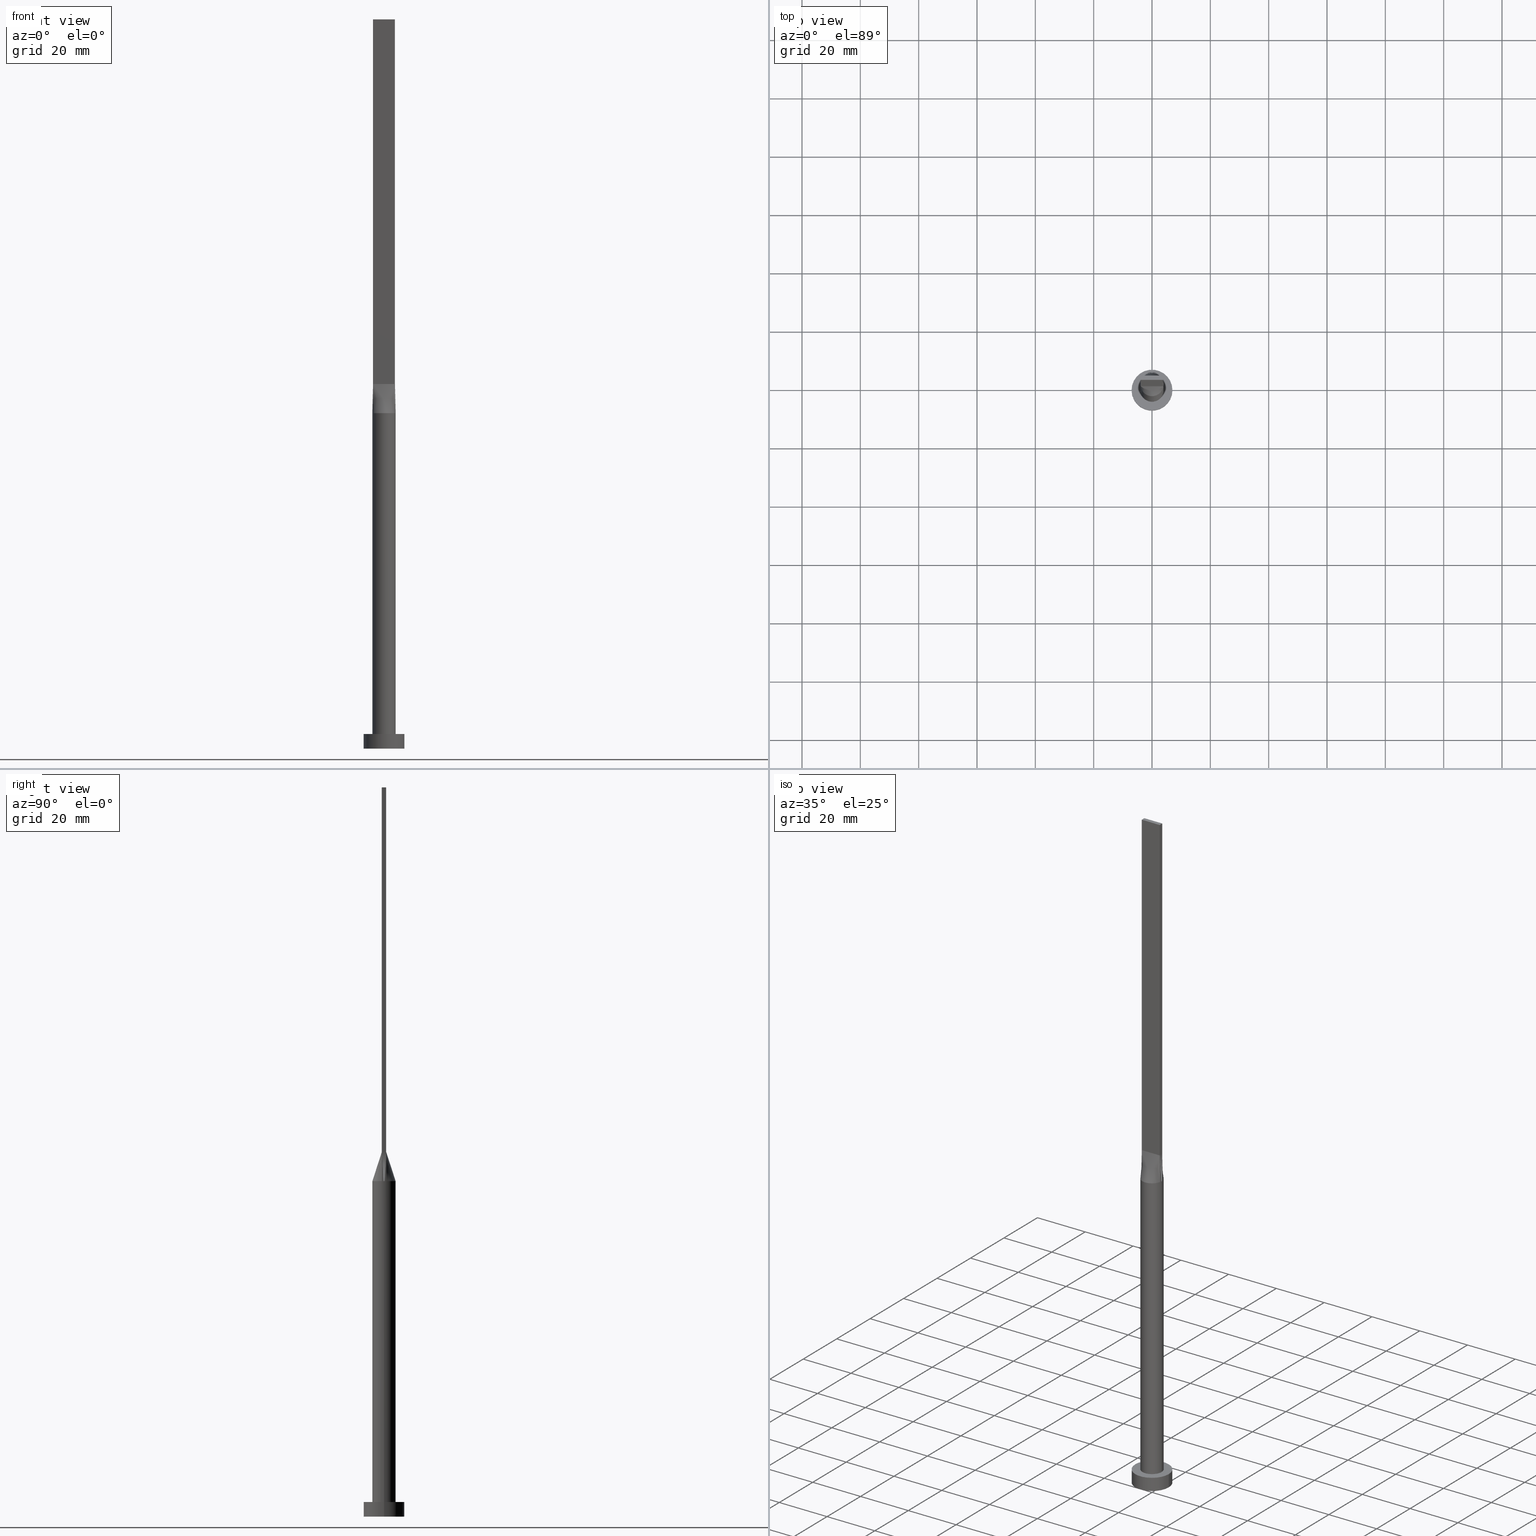
[diagram: canonical four-view strip — front | top / right | iso, engineering-drawing reading convention]
A machine part, canonical four-view strip (front | top / right | iso — engineering-drawing reading convention). The complete STEP part file that produces these views, byte-faithful:
ISO-10303-21;
HEADER;
FILE_DESCRIPTION (( 'STEP AP203' ),
    '1' );
FILE_NAME ('21d0.STEP',
    '2023-02-13T10:44:52',
    ( '' ),
    ( '' ),
    'SwSTEP 2.0',
    'SolidWorks 2019',
    '' );
FILE_SCHEMA (( 'CONFIG_CONTROL_DESIGN' ));
ENDSEC;

DATA;
#1 =( GEOMETRIC_REPRESENTATION_CONTEXT ( 3 ) GLOBAL_UNCERTAINTY_ASSIGNED_CONTEXT ( ( #564 ) ) GLOBAL_UNIT_ASSIGNED_CONTEXT ( ( #218, #135, #312 ) ) REPRESENTATION_CONTEXT ( 'NONE', 'WORKASPACE' ) );
#2 = DIRECTION ( 'NONE',  ( 0.000000000000000000, 0.000000000000000000, 1.000000000000000000 ) ) ;
#3 = DIRECTION ( 'NONE',  ( 0.01722960997854780865, -0.003445921995709364145, 0.9998456211643809155 ) ) ;
#4 = ORIENTED_EDGE ( 'NONE', *, *, #35, .T. ) ;
#5 = EDGE_CURVE ( 'NONE', #505, #11, #339, .T. ) ;
#6 = EDGE_CURVE ( 'NONE', #17, #185, #428, .T. ) ;
#7 = DIRECTION ( 'NONE',  ( 0.000000000000000000, 0.000000000000000000, 1.000000000000000000 ) ) ;
#8 = ORIENTED_EDGE ( 'NONE', *, *, #507, .T. ) ;
#9 = DESIGN_CONTEXT ( 'detailed design', #391, 'design' ) ;
#10 = CARTESIAN_POINT ( 'NONE',  ( -3.922691944042750123, 0.7845383302616953936, 115.0000000000000000 ) ) ;
#11 = VERTEX_POINT ( 'NONE', #484 ) ;
#12 = AXIS2_PLACEMENT_3D ( 'NONE', #155, #62, #340 ) ;
#13 = FACE_OUTER_BOUND ( 'NONE', #206, .T. ) ;
#14 = CARTESIAN_POINT ( 'NONE',  ( -3.124999999999999112, -0.7499999999999993339, 125.0000000000000000 ) ) ;
#15 = VERTEX_POINT ( 'NONE', #165 ) ;
#16 = EDGE_CURVE ( 'NONE', #249, #416, #530, .T. ) ;
#17 = VERTEX_POINT ( 'NONE', #349 ) ;
#18 = CARTESIAN_POINT ( 'NONE',  ( -2.474203369347176107, -3.177619198138197820, 115.0000000000000000 ) ) ;
#19 = DIRECTION ( 'NONE',  ( 1.000000000000000000, 0.000000000000000000, 0.000000000000000000 ) ) ;
#20 = CARTESIAN_POINT ( 'NONE',  ( -0.6250000000000006661, 0.7500000000000002220, 125.0000000000000000 ) ) ;
#21 = CARTESIAN_POINT ( 'NONE',  ( 1.250000000000001554, -0.7499999999999995559, 125.0000000000000000 ) ) ;
#22 = APPROVAL_PERSON_ORGANIZATION ( #170, #89, #205 ) ;
#23 = DATE_AND_TIME ( #429, #115 ) ;
#24 = PRODUCT_DEFINITION ( 'NEZN�M�', '', #392, #9 ) ;
#25 = AXIS2_PLACEMENT_3D ( 'NONE', #118, #298, #19 ) ;
#26 = DIRECTION ( 'NONE',  ( 1.000000000000000000, 0.000000000000000000, -0.000000000000000000 ) ) ;
#27 = ORIENTED_EDGE ( 'NONE', *, *, #5, .T. ) ;
#28 = DIRECTION ( 'NONE',  ( -0.01722960997854780865, -0.003445921995709396671, 0.9998456211643809155 ) ) ;
#29 = CARTESIAN_POINT ( 'NONE',  ( 3.748423346357935948, 1.451418640363468349, 115.0000000000000142 ) ) ;
#30 = FACE_BOUND ( 'NONE', #152, .T. ) ;
#31 = APPROVAL_ROLE ( '' ) ;
#32 = CARTESIAN_POINT ( 'NONE',  ( 0.000000000000000000, 0.000000000000000000, 115.0000000000000000 ) ) ;
#33 = ORIENTED_EDGE ( 'NONE', *, *, #16, .T. ) ;
#34 = CIRCLE ( 'NONE', #310, 4.000000000000000000 ) ;
#35 = EDGE_CURVE ( 'NONE', #117, #505, #256, .T. ) ;
#36 = ORIENTED_EDGE ( 'NONE', *, *, #138, .F. ) ;
#37 = DIRECTION ( 'NONE',  ( 0.000000000000000000, 1.000000000000000000, 0.000000000000000000 ) ) ;
#38 = DIRECTION ( 'NONE',  ( 0.000000000000000000, 0.000000000000000000, 1.000000000000000000 ) ) ;
#39 = ORIENTED_EDGE ( 'NONE', *, *, #238, .T. ) ;
#40 = LINE ( 'NONE', #408, #245 ) ;
#41 = CARTESIAN_POINT ( 'NONE',  ( -2.474203369347175219, 3.177619198138199152, 114.9999999999999858 ) ) ;
#42 = CARTESIAN_POINT ( 'NONE',  ( -3.750000000000000000, 0.7500000000000002220, 250.0000000000000000 ) ) ;
#43 = DIRECTION ( 'NONE',  ( -1.000000000000000000, -0.000000000000000000, -0.000000000000000000 ) ) ;
#44 = CC_DESIGN_PERSON_AND_ORGANIZATION_ASSIGNMENT ( #159, #526, ( #431 ) ) ;
#45 = VERTEX_POINT ( 'NONE', #129 ) ;
#46 = DIRECTION ( 'NONE',  ( -1.000000000000000000, 0.000000000000000000, 0.000000000000000000 ) ) ;
#47 = VECTOR ( 'NONE', #412, 1000.000000000000000 ) ;
#48 = CARTESIAN_POINT ( 'NONE',  ( -3.973604754045732435, 0.5280542841424794576, 115.0000000000000000 ) ) ;
#49 = CARTESIAN_POINT ( 'NONE',  ( -3.750000000000000000, 0.7500000000000002220, 250.0000000000000000 ) ) ;
#50 = ORIENTED_EDGE ( 'NONE', *, *, #6, .T. ) ;
#51 = DIRECTION ( 'NONE',  ( -0.000000000000000000, 0.000000000000000000, -1.000000000000000000 ) ) ;
#52 = CARTESIAN_POINT ( 'NONE',  ( -3.140797583654741043, -2.520780954342105140, 114.9999999999999716 ) ) ;
#53 = EDGE_LOOP ( 'NONE', ( #357, #480 ) ) ;
#54 = PRODUCT_DEFINITION_SHAPE ( 'NONE', 'NONE',  #24 ) ;
#55 = CARTESIAN_POINT ( 'NONE',  ( 0.5465359351457045323, 4.000000000000000888, 115.0000000000000426 ) ) ;
#56 = DIRECTION ( 'NONE',  ( -0.000000000000000000, -0.000000000000000000, -1.000000000000000000 ) ) ;
#57 = ORIENTED_EDGE ( 'NONE', *, *, #508, .F. ) ;
#58 = AXIS2_PLACEMENT_3D ( 'NONE', #32, #344, #299 ) ;
#59 = AXIS2_PLACEMENT_3D ( 'NONE', #486, #559, #38 ) ;
#60 = CARTESIAN_POINT ( 'NONE',  ( -3.437499999999999556, -0.7499999999999993339, 125.0000000000000000 ) ) ;
#61 = CARTESIAN_POINT ( 'NONE',  ( 1.091295599582912557, -3.883835547170275682, 115.0000000000000142 ) ) ;
#62 = DIRECTION ( 'NONE',  ( 0.000000000000000000, 0.000000000000000000, 1.000000000000000000 ) ) ;
#63 = CARTESIAN_POINT ( 'NONE',  ( -2.055729527861833272, -3.471178582471582175, 115.0000000000000142 ) ) ;
#64 = ORIENTED_EDGE ( 'NONE', *, *, #168, .F. ) ;
#65 = CARTESIAN_POINT ( 'NONE',  ( 3.749999999999999556, 0.2500000000000009437, 125.0000000000000000 ) ) ;
#66 = ADVANCED_FACE ( 'NONE', ( #210 ), #161, .T. ) ;
#67 = CARTESIAN_POINT ( 'NONE',  ( -7.000000000000000000, 0.000000000000000000, 5.000000000000000000 ) ) ;
#68 = CARTESIAN_POINT ( 'NONE',  ( 1.562500000000001110, -0.7499999999999995559, 125.0000000000000000 ) ) ;
#69 = CIRCLE ( 'NONE', #190, 4.000000000000000000 ) ;
#70 = CARTESIAN_POINT ( 'NONE',  ( 3.750000000000000000, 0.7500000000000002220, 250.0000000000000000 ) ) ;
#71 = CARTESIAN_POINT ( 'NONE',  ( 2.474203369347174331, 3.177619198138197820, 114.9999999999999716 ) ) ;
#72 = CYLINDRICAL_SURFACE ( 'NONE', #224, 7.000000000000000000 ) ;
#73 = ORIENTED_EDGE ( 'NONE', *, *, #399, .T. ) ;
#74 = CARTESIAN_POINT ( 'NONE',  ( 0.000000000000000000, 0.000000000000000000, 0.000000000000000000 ) ) ;
#75 = FACE_OUTER_BOUND ( 'NONE', #482, .T. ) ;
#76 = CARTESIAN_POINT ( 'NONE',  ( 0.000000000000000000, 0.000000000000000000, 0.000000000000000000 ) ) ;
#77 = LOCAL_TIME ( 11, 44, 52.00000000000000000, #485 ) ;
#78 = APPROVAL_PERSON_ORGANIZATION ( #475, #441, #31 ) ;
#79 = VECTOR ( 'NONE', #221, 1000.000000000000000 ) ;
#80 = ORIENTED_EDGE ( 'NONE', *, *, #472, .T. ) ;
#81 = EDGE_CURVE ( 'NONE', #15, #45, #525, .T. ) ;
#82 = SHAPE_DEFINITION_REPRESENTATION ( #54, #554 ) ;
#83 = VERTEX_POINT ( 'NONE', #126 ) ;
#84 = DIRECTION ( 'NONE',  ( 0.000000000000000000, 0.000000000000000000, 1.000000000000000000 ) ) ;
#85 = CIRCLE ( 'NONE', #125, 7.000000000000000000 ) ;
#86 = CARTESIAN_POINT ( 'NONE',  ( -3.750000000000000000, -0.7499999999999993339, 250.0000000000000000 ) ) ;
#87 = EDGE_LOOP ( 'NONE', ( #106, #553, #33, #156, #323 ) ) ;
#88 = DIRECTION ( 'NONE',  ( 1.000000000000000000, 0.000000000000000000, 0.000000000000000000 ) ) ;
#89 = APPROVAL ( #576, 'NEUR�EN�' ) ;
#90 = DIRECTION ( 'NONE',  ( 1.000000000000000000, 0.000000000000000000, -0.000000000000000000 ) ) ;
#91 = CARTESIAN_POINT ( 'NONE',  ( 3.922678046951852959, 0.7845356715334603770, 115.0000000000000000 ) ) ;
#92 = EDGE_LOOP ( 'NONE', ( #377, #122, #488, #64, #302, #550 ) ) ;
#93 = CARTESIAN_POINT ( 'NONE',  ( -3.922691944042750123, 0.7845383302616953936, 115.0000000000000000 ) ) ;
#94 = APPLICATION_PROTOCOL_DEFINITION ( 'international standard', 'config_control_design', 1994, #391 ) ;
#95 = CARTESIAN_POINT ( 'NONE',  ( -3.748423346357938168, -1.451418640363467683, 115.0000000000000426 ) ) ;
#96 = VECTOR ( 'NONE', #37, 1000.000000000000000 ) ;
#97 = ORIENTED_EDGE ( 'NONE', *, *, #469, .F. ) ;
#98 = CARTESIAN_POINT ( 'NONE',  ( 3.390424152328985752, 2.159240079384420419, 115.0000000000000284 ) ) ;
#99 = VECTOR ( 'NONE', #43, 1000.000000000000000 ) ;
#100 = CARTESIAN_POINT ( 'NONE',  ( 1.091295599582912113, 3.883835547170277014, 115.0000000000000284 ) ) ;
#101 = CARTESIAN_POINT ( 'NONE',  ( -3.999622889843378992, -9.724176664205578004E-16, 115.0000000000000000 ) ) ;
#102 = CARTESIAN_POINT ( 'NONE',  ( -3.750000000000000000, -0.7499999999999993339, 125.0000000000000000 ) ) ;
#103 = DIRECTION ( 'NONE',  ( 1.000000000000000000, 0.000000000000000000, 0.000000000000000000 ) ) ;
#104 = ORIENTED_EDGE ( 'NONE', *, *, #445, .F. ) ;
#105 = CARTESIAN_POINT ( 'NONE',  ( 7.000000000000000000, 8.572527594031473190E-16, 5.000000000000000000 ) ) ;
#106 = ORIENTED_EDGE ( 'NONE', *, *, #355, .T. ) ;
#107 = CC_DESIGN_APPROVAL ( #89, ( #431 ) ) ;
#108 = AXIS2_PLACEMENT_3D ( 'NONE', #504, #316, #103 ) ;
#109 = CARTESIAN_POINT ( 'NONE',  ( -0.5465359351457051984, -4.000000000000000888, 115.0000000000000000 ) ) ;
#110 = CARTESIAN_POINT ( 'NONE',  ( -1.250000000000000222, 0.7500000000000002220, 125.0000000000000000 ) ) ;
#111 = CARTESIAN_POINT ( 'NONE',  ( 3.125000000000000000, -0.7499999999999997780, 125.0000000000000000 ) ) ;
#112 = ADVANCED_FACE ( 'NONE', ( #75 ), #430, .T. ) ;
#113 = CARTESIAN_POINT ( 'NONE',  ( 3.437500000000000000, 0.7500000000000003331, 125.0000000000000000 ) ) ;
#114 = DIRECTION ( 'NONE',  ( 1.000000000000000000, 0.000000000000000000, 0.000000000000000000 ) ) ;
#115 = LOCAL_TIME ( 11, 44, 52.00000000000000000, #393 ) ;
#116 = CIRCLE ( 'NONE', #12, 4.000000000000000000 ) ;
#117 = VERTEX_POINT ( 'NONE', #569 ) ;
#118 = CARTESIAN_POINT ( 'NONE',  ( 0.000000000000000000, 0.000000000000000000, 5.000000000000000000 ) ) ;
#119 = CARTESIAN_POINT ( 'NONE',  ( 0.000000000000000000, 0.000000000000000000, 5.000000000000000000 ) ) ;
#120 = EDGE_CURVE ( 'NONE', #11, #174, #314, .T. ) ;
#121 = DIRECTION ( 'NONE',  ( 5.782411586589357392E-17, 1.000000000000000000, -0.000000000000000000 ) ) ;
#122 = ORIENTED_EDGE ( 'NONE', *, *, #355, .F. ) ;
#123 = DATE_AND_TIME ( #556, #198 ) ;
#124 = SECURITY_CLASSIFICATION_LEVEL ( 'unclassified' ) ;
#125 = AXIS2_PLACEMENT_3D ( 'NONE', #74, #130, #217 ) ;
#126 = CARTESIAN_POINT ( 'NONE',  ( 3.750000000000000000, -0.7499999999999997780, 125.0000000000000000 ) ) ;
#127 = PERSON_AND_ORGANIZATION ( #467, #329 ) ;
#128 = CC_DESIGN_PERSON_AND_ORGANIZATION_ASSIGNMENT ( #487, #211, ( #392 ) ) ;
#129 = CARTESIAN_POINT ( 'NONE',  ( -4.000000000000000000, 0.000000000000000000, 5.000000000000000000 ) ) ;
#130 = DIRECTION ( 'NONE',  ( 0.000000000000000000, 0.000000000000000000, 1.000000000000000000 ) ) ;
#131 = CARTESIAN_POINT ( 'NONE',  ( -3.750000000000000000, 0.7500000000000002220, 125.0000000000000000 ) ) ;
#132 = ORIENTED_EDGE ( 'NONE', *, *, #469, .T. ) ;
#133 = CIRCLE ( 'NONE', #490, 7.000000000000000000 ) ;
#134 = EDGE_CURVE ( 'NONE', #136, #83, #272, .T. ) ;
#135 =( NAMED_UNIT ( * ) PLANE_ANGLE_UNIT ( ) SI_UNIT ( $, .RADIAN. ) );
#136 = VERTEX_POINT ( 'NONE', #141 ) ;
#137 = DIRECTION ( 'NONE',  ( -0.01722960997854780865, 0.003445921995709364145, 0.9998456211643809155 ) ) ;
#138 = EDGE_CURVE ( 'NONE', #505, #416, #228, .T. ) ;
#139 = CARTESIAN_POINT ( 'NONE',  ( 0.5465359351457045323, 4.000000000000000888, 115.0000000000000426 ) ) ;
#140 = LINE ( 'NONE', #237, #79 ) ;
#141 = CARTESIAN_POINT ( 'NONE',  ( -3.750000000000000000, -0.7499999999999993339, 125.0000000000000000 ) ) ;
#142 = DIRECTION ( 'NONE',  ( 1.000000000000000000, 0.000000000000000000, 0.000000000000000000 ) ) ;
#143 = CARTESIAN_POINT ( 'NONE',  ( -3.750000000000000000, 0.7500000000000002220, 125.0000000000000000 ) ) ;
#144 = DIRECTION ( 'NONE',  ( 0.000000000000000000, -1.000000000000000000, 0.000000000000000000 ) ) ;
#145 = EDGE_CURVE ( 'NONE', #264, #83, #40, .T. ) ;
#146 = CARTESIAN_POINT ( 'NONE',  ( 4.000000000000000000, 4.898587196589412829E-16, 115.0000000000000000 ) ) ;
#147 = CARTESIAN_POINT ( 'NONE',  ( 3.125000000000000444, 0.7500000000000003331, 125.0000000000000000 ) ) ;
#148 = CARTESIAN_POINT ( 'NONE',  ( -1.562499999999998446, -0.7499999999999993339, 125.0000000000000000 ) ) ;
#149 = ORIENTED_EDGE ( 'NONE', *, *, #562, .T. ) ;
#150 = ADVANCED_FACE ( 'NONE', ( #361 ), #265, .T. ) ;
#151 = APPROVAL_PERSON_ORGANIZATION ( #371, #570, #173 ) ;
#152 = EDGE_LOOP ( 'NONE', ( #563, #222 ) ) ;
#153 = FACE_OUTER_BOUND ( 'NONE', #400, .T. ) ;
#154 = CARTESIAN_POINT ( 'NONE',  ( 2.055729527861832828, -3.471178582471583063, 115.0000000000000284 ) ) ;
#155 = CARTESIAN_POINT ( 'NONE',  ( 0.000000000000000000, 0.000000000000000000, 115.0000000000000000 ) ) ;
#156 = ORIENTED_EDGE ( 'NONE', *, *, #418, .F. ) ;
#157 = CARTESIAN_POINT ( 'NONE',  ( 1.562500000000000000, 0.7500000000000002220, 125.0000000000000000 ) ) ;
#158 = FACE_OUTER_BOUND ( 'NONE', #442, .T. ) ;
#159 = PERSON_AND_ORGANIZATION ( #467, #329 ) ;
#160 = ORIENTED_EDGE ( 'NONE', *, *, #120, .F. ) ;
#161 = CYLINDRICAL_SURFACE ( 'NONE', #58, 4.000000000000000000 ) ;
#162 = CARTESIAN_POINT ( 'NONE',  ( -3.140797583654740599, 2.520780954342106916, 114.9999999999999716 ) ) ;
#163 = CARTESIAN_POINT ( 'NONE',  ( 0.000000000000000000, 0.000000000000000000, 250.0000000000000000 ) ) ;
#164 = DIRECTION ( 'NONE',  ( 1.000000000000000000, -5.782411586589357392E-17, 0.000000000000000000 ) ) ;
#165 = CARTESIAN_POINT ( 'NONE',  ( 4.000000000000000000, 4.898587196589412829E-16, 5.000000000000000000 ) ) ;
#166 = VECTOR ( 'NONE', #443, 1000.000000000000000 ) ;
#167 = EDGE_CURVE ( 'NONE', #185, #17, #133, .T. ) ;
#168 = EDGE_CURVE ( 'NONE', #529, #194, #116, .T. ) ;
#169 = AXIS2_PLACEMENT_3D ( 'NONE', #76, #432, #26 ) ;
#170 = PERSON_AND_ORGANIZATION ( #467, #329 ) ;
#171 = APPLICATION_CONTEXT ( 'configuration controlled 3d designs of mechanical parts and assemblies' ) ;
#172 = FACE_OUTER_BOUND ( 'NONE', #453, .T. ) ;
#173 = APPROVAL_ROLE ( '' ) ;
#174 = VERTEX_POINT ( 'NONE', #336 ) ;
#175 = ADVANCED_FACE ( 'NONE', ( #153 ), #289, .T. ) ;
#176 = CARTESIAN_POINT ( 'NONE',  ( 0.000000000000000000, 0.000000000000000000, 5.000000000000000000 ) ) ;
#177 = CARTESIAN_POINT ( 'NONE',  ( 0.000000000000000000, 0.000000000000000000, 5.000000000000000000 ) ) ;
#178 = CARTESIAN_POINT ( 'NONE',  ( 3.750000000000000000, 0.7500000000000002220, 250.0000000000000000 ) ) ;
#179 = AXIS2_PLACEMENT_3D ( 'NONE', #365, #540, #142 ) ;
#180 = CARTESIAN_POINT ( 'NONE',  ( -3.390424152328988416, 2.159240079384419975, 115.0000000000000284 ) ) ;
#181 = CARTESIAN_POINT ( 'NONE',  ( -3.750000000000000000, -0.7499999999999993339, 250.0000000000000000 ) ) ;
#182 = DIRECTION ( 'NONE',  ( -0.000000000000000000, -0.000000000000000000, -1.000000000000000000 ) ) ;
#183 = ORIENTED_EDGE ( 'NONE', *, *, #345, .F. ) ;
#184 = DIRECTION ( 'NONE',  ( -1.000000000000000000, 0.000000000000000000, 0.000000000000000000 ) ) ;
#185 = VERTEX_POINT ( 'NONE', #67 ) ;
#186 = EDGE_CURVE ( 'NONE', #194, #264, #413, .T. ) ;
#187 = PERSON_AND_ORGANIZATION ( #467, #329 ) ;
#188 = DIRECTION ( 'NONE',  ( -0.000000000000000000, -0.000000000000000000, -1.000000000000000000 ) ) ;
#189 = ORIENTED_EDGE ( 'NONE', *, *, #253, .T. ) ;
#190 = AXIS2_PLACEMENT_3D ( 'NONE', #549, #7, #322 ) ;
#191 = CARTESIAN_POINT ( 'NONE',  ( 3.750000000000000000, 0.7500000000000002220, 125.0000000000000000 ) ) ;
#192 = FACE_OUTER_BOUND ( 'NONE', #491, .T. ) ;
#193 = CARTESIAN_POINT ( 'NONE',  ( 3.750000000000000000, 0.7500000000000002220, 250.0000000000000000 ) ) ;
#194 = VERTEX_POINT ( 'NONE', #295 ) ;
#195 = CC_DESIGN_PERSON_AND_ORGANIZATION_ASSIGNMENT ( #354, #252, ( #392 ) ) ;
#196 = CARTESIAN_POINT ( 'NONE',  ( -3.748423346357937280, 1.451418640363469015, 115.0000000000000284 ) ) ;
#197 = CARTESIAN_POINT ( 'NONE',  ( 3.922322702763681335, -0.7844645405527340687, 115.0000000000000000 ) ) ;
#198 = LOCAL_TIME ( 11, 44, 52.00000000000000000, #424 ) ;
#199 = CARTESIAN_POINT ( 'NONE',  ( -3.836161351381840667, -0.7672322702763668678, 120.0000000000000000 ) ) ;
#200 = CARTESIAN_POINT ( 'NONE',  ( 0.000000000000000000, 0.000000000000000000, 115.0000000000000000 ) ) ;
#201 = CARTESIAN_POINT ( 'NONE',  ( 3.750000000000000000, 0.7500000000000002220, 250.0000000000000000 ) ) ;
#202 = ORIENTED_EDGE ( 'NONE', *, *, #16, .F. ) ;
#203 = DIRECTION ( 'NONE',  ( 0.000000000000000000, 0.000000000000000000, 1.000000000000000000 ) ) ;
#204 = LINE ( 'NONE', #544, #547 ) ;
#205 = APPROVAL_ROLE ( '' ) ;
#206 = EDGE_LOOP ( 'NONE', ( #347, #271, #520, #257 ) ) ;
#207 = ADVANCED_FACE ( 'NONE', ( #385 ), #72, .T. ) ;
#208 = DATE_TIME_ROLE ( 'classification_date' ) ;
#209 = EDGE_LOOP ( 'NONE', ( #370, #476, #132, #8 ) ) ;
#210 = FACE_OUTER_BOUND ( 'NONE', #92, .T. ) ;
#211 = PERSON_AND_ORGANIZATION_ROLE ( 'creator' ) ;
#212 = VECTOR ( 'NONE', #164, 1000.000000000000000 ) ;
#213 = DIRECTION ( 'NONE',  ( -1.000000000000000000, 0.000000000000000000, 0.000000000000000000 ) ) ;
#214 = ADVANCED_FACE ( 'NONE', ( #158 ), #390, .F. ) ;
#215 = CARTESIAN_POINT ( 'NONE',  ( -3.749999999999999556, -0.5000000000000001110, 125.0000000000000000 ) ) ;
#216 = ADVANCED_FACE ( 'NONE', ( #522 ), #250, .F. ) ;
#217 = DIRECTION ( 'NONE',  ( 1.000000000000000000, 0.000000000000000000, 0.000000000000000000 ) ) ;
#218 =( LENGTH_UNIT ( ) NAMED_UNIT ( * ) SI_UNIT ( .MILLI., .METRE. ) );
#219 = CARTESIAN_POINT ( 'NONE',  ( -3.748423346357937280, 1.451418640363469015, 115.0000000000000284 ) ) ;
#220 = CARTESIAN_POINT ( 'NONE',  ( -3.999245779686757984, -0.2640271420712390071, 115.0000000000000000 ) ) ;
#221 = DIRECTION ( 'NONE',  ( -0.000000000000000000, -0.000000000000000000, -1.000000000000000000 ) ) ;
#222 = ORIENTED_EDGE ( 'NONE', *, *, #81, .F. ) ;
#223 = DIRECTION ( 'NONE',  ( 0.000000000000000000, -1.000000000000000000, 0.000000000000000000 ) ) ;
#224 = AXIS2_PLACEMENT_3D ( 'NONE', #248, #425, #565 ) ;
#225 = CARTESIAN_POINT ( 'NONE',  ( -3.749999999999999556, 0.4999999999999995559, 125.0000000000000000 ) ) ;
#226 = DIRECTION ( 'NONE',  ( 0.000000000000000000, -0.000000000000000000, -1.000000000000000000 ) ) ;
#227 = ORIENTED_EDGE ( 'NONE', *, *, #562, .F. ) ;
#228 = LINE ( 'NONE', #178, #281 ) ;
#229 = EDGE_CURVE ( 'NONE', #117, #83, #204, .T. ) ;
#230 = APPLICATION_PROTOCOL_DEFINITION ( 'international standard', 'config_control_design', 1994, #171 ) ;
#231 = CARTESIAN_POINT ( 'NONE',  ( -3.836161351381840667, 0.7672322702763673119, 120.0000000000000000 ) ) ;
#232 = ORIENTED_EDGE ( 'NONE', *, *, #138, .T. ) ;
#233 = CARTESIAN_POINT ( 'NONE',  ( 0.3124999999999991673, 0.7500000000000003331, 125.0000000000000000 ) ) ;
#234 = CARTESIAN_POINT ( 'NONE',  ( 3.750000000000000000, 0.7500000000000002220, 125.0000000000000000 ) ) ;
#235 = CLOSED_SHELL ( 'NONE', ( #381, #207, #150, #519, #216, #66, #419, #466, #543, #175, #300, #524, #214, #457, #112 ) ) ;
#236 = AXIS2_PLACEMENT_3D ( 'NONE', #200, #517, #114 ) ;
#237 = CARTESIAN_POINT ( 'NONE',  ( -4.000000000000000000, 0.000000000000000000, 115.0000000000000000 ) ) ;
#238 = EDGE_CURVE ( 'NONE', #342, #15, #552, .T. ) ;
#239 = CARTESIAN_POINT ( 'NONE',  ( 2.187500000000000000, 0.7500000000000002220, 125.0000000000000000 ) ) ;
#240 = CARTESIAN_POINT ( 'NONE',  ( -2.187500000000000000, 0.7500000000000002220, 125.0000000000000000 ) ) ;
#241 = CARTESIAN_POINT ( 'NONE',  ( 3.858220138661117016, -1.104977361065556662, 115.0000000000000142 ) ) ;
#242 = CARTESIAN_POINT ( 'NONE',  ( 3.999245779686757984, -0.2640271420712401729, 115.0000000000000000 ) ) ;
#243 = CARTESIAN_POINT ( 'NONE',  ( 3.748423346357935948, 1.451418640363468349, 115.0000000000000142 ) ) ;
#244 = CARTESIAN_POINT ( 'NONE',  ( -3.922322702763681335, 0.7844645405527345128, 115.0000000000000000 ) ) ;
#245 = VECTOR ( 'NONE', #137, 1000.000000000000000 ) ;
#246 = CARTESIAN_POINT ( 'NONE',  ( 3.748423346357937280, -1.451418640363469015, 115.0000000000000284 ) ) ;
#247 = EDGE_CURVE ( 'NONE', #407, #397, #277, .T. ) ;
#248 = CARTESIAN_POINT ( 'NONE',  ( 0.000000000000000000, 0.000000000000000000, 5.000000000000000000 ) ) ;
#249 = VERTEX_POINT ( 'NONE', #91 ) ;
#250 = PLANE ( 'NONE',  #169 ) ;
#251 = VECTOR ( 'NONE', #3, 1000.000000000000000 ) ;
#252 = PERSON_AND_ORGANIZATION_ROLE ( 'design_supplier' ) ;
#253 = EDGE_CURVE ( 'NONE', #11, #397, #263, .T. ) ;
#254 = APPROVAL_DATE_TIME ( #305, #89 ) ;
#255 = ORIENTED_EDGE ( 'NONE', *, *, #315, .F. ) ;
#256 = LINE ( 'NONE', #440, #96 ) ;
#257 = ORIENTED_EDGE ( 'NONE', *, *, #502, .T. ) ;
#258 = APPROVAL_STATUS ( 'not_yet_approved' ) ;
#259 = ORIENTED_EDGE ( 'NONE', *, *, #120, .T. ) ;
#260 = DIRECTION ( 'NONE',  ( 1.000000000000000000, 0.000000000000000000, 0.000000000000000000 ) ) ;
#261 = CARTESIAN_POINT ( 'NONE',  ( -3.749999999999999556, -0.2500000000000005551, 125.0000000000000000 ) ) ;
#262 = ORIENTED_EDGE ( 'NONE', *, *, #247, .T. ) ;
#263 = LINE ( 'NONE', #49, #380 ) ;
#264 = VERTEX_POINT ( 'NONE', #451 ) ;
#265 = CYLINDRICAL_SURFACE ( 'NONE', #462, 7.000000000000000000 ) ;
#266 = FACE_OUTER_BOUND ( 'NONE', #87, .T. ) ;
#267 = CARTESIAN_POINT ( 'NONE',  ( 7.000000000000000000, 8.572527594031473190E-16, 0.000000000000000000 ) ) ;
#268 = CARTESIAN_POINT ( 'NONE',  ( -3.390424152328987528, -2.159240079384418642, 114.9999999999999858 ) ) ;
#269 = MANIFOLD_SOLID_BREP ( 'P�idat vysunut�m5', #235 ) ;
#270 = CC_DESIGN_DATE_AND_TIME_ASSIGNMENT ( #23, #208, ( #431 ) ) ;
#271 = ORIENTED_EDGE ( 'NONE', *, *, #145, .T. ) ;
#272 = LINE ( 'NONE', #368, #166 ) ;
#273 = AXIS2_PLACEMENT_3D ( 'NONE', #177, #2, #90 ) ;
#274 = CARTESIAN_POINT ( 'NONE',  ( -3.922322702763681335, -0.7844645405527344018, 115.0000000000000000 ) ) ;
#275 = CARTESIAN_POINT ( 'NONE',  ( -2.499999999999998668, -0.7499999999999993339, 125.0000000000000000 ) ) ;
#276 = CARTESIAN_POINT ( 'NONE',  ( 2.055729527861830608, 3.471178582471582619, 114.9999999999999858 ) ) ;
#277 = LINE ( 'NONE', #231, #251 ) ;
#278 = CARTESIAN_POINT ( 'NONE',  ( 1.091295599582912113, 3.883835547170277014, 115.0000000000000284 ) ) ;
#279 = EDGE_CURVE ( 'NONE', #529, #45, #140, .T. ) ;
#280 = CARTESIAN_POINT ( 'NONE',  ( -0.3125000000000009437, 0.7500000000000003331, 125.0000000000000000 ) ) ;
#281 = VECTOR ( 'NONE', #492, 1000.000000000000000 ) ;
#282 = DIRECTION ( 'NONE',  ( 0.000000000000000000, 0.000000000000000000, 1.000000000000000000 ) ) ;
#283 = CIRCLE ( 'NONE', #402, 7.000000000000000000 ) ;
#284 = CARTESIAN_POINT ( 'NONE',  ( -2.500000000000000444, 0.7500000000000002220, 125.0000000000000000 ) ) ;
#285 = CARTESIAN_POINT ( 'NONE',  ( 2.500000000000000444, -0.7499999999999996669, 125.0000000000000000 ) ) ;
#286 = CARTESIAN_POINT ( 'NONE',  ( 3.750000000000000000, -0.7499999999999997780, 125.0000000000000000 ) ) ;
#287 = ORIENTED_EDGE ( 'NONE', *, *, #35, .F. ) ;
#288 = CARTESIAN_POINT ( 'NONE',  ( 3.437500000000000000, -0.7499999999999997780, 125.0000000000000000 ) ) ;
#289 = B_SPLINE_SURFACE_WITH_KNOTS ( 'NONE', 3, 1, ( 
 ( #555, #415 ),
 ( #516, #113 ),
 ( #243, #147 ),
 ( #513, #290 ),
 ( #294, #239 ),
 ( #71, #157 ),
 ( #546, #318 ),
 ( #100, #458 ),
 ( #55, #233 ),
 ( #325, #280 ),
 ( #427, #20 ),
 ( #510, #110 ),
 ( #468, #423 ),
 ( #162, #240 ),
 ( #420, #284 ),
 ( #196, #473 ),
 ( #464, #561 ),
 ( #244, #514 ) ),
 .UNSPECIFIED., .F., .F., .F.,
 ( 4, 2, 2, 2, 2, 2, 2, 2, 4 ),
 ( 2, 2 ),
 ( 0.000000000000000000, 0.1249999999999999167, 0.2499999999999998890, 0.3749999999999998335, 0.4999999999999998890, 0.6249999999999998890, 0.7499999999999998890, 0.8750000000000000000, 1.000000000000000000 ),
 ( 0.000000000000000000, 1.000000000000000000 ),
 .UNSPECIFIED. ) ;
#290 = CARTESIAN_POINT ( 'NONE',  ( 2.500000000000000444, 0.7500000000000003331, 125.0000000000000000 ) ) ;
#291 = CARTESIAN_POINT ( 'NONE',  ( -0.3124999999999987788, -0.7499999999999993339, 125.0000000000000000 ) ) ;
#292 = ORIENTED_EDGE ( 'NONE', *, *, #229, .T. ) ;
#293 = CARTESIAN_POINT ( 'NONE',  ( 3.749999999999999556, 0.5000000000000006661, 125.0000000000000000 ) ) ;
#294 = CARTESIAN_POINT ( 'NONE',  ( 3.140797583654741931, 2.520780954342106028, 114.9999999999999858 ) ) ;
#295 = CARTESIAN_POINT ( 'NONE',  ( -3.922691619086878134, -0.7845384300002018474, 115.0000000000000000 ) ) ;
#296 = AXIS2_PLACEMENT_3D ( 'NONE', #193, #366, #226 ) ;
#297 = CARTESIAN_POINT ( 'NONE',  ( -1.249999999999998446, -0.7499999999999993339, 125.0000000000000000 ) ) ;
#298 = DIRECTION ( 'NONE',  ( 0.000000000000000000, 0.000000000000000000, 1.000000000000000000 ) ) ;
#299 = DIRECTION ( 'NONE',  ( -1.000000000000000000, 0.000000000000000000, 0.000000000000000000 ) ) ;
#300 = ADVANCED_FACE ( 'NONE', ( #500 ), #319, .F. ) ;
#301 = EDGE_CURVE ( 'NONE', #17, #538, #406, .T. ) ;
#302 = ORIENTED_EDGE ( 'NONE', *, *, #279, .T. ) ;
#303 = APPROVAL_DATE_TIME ( #123, #570 ) ;
#304 = AXIS2_PLACEMENT_3D ( 'NONE', #571, #121, #346 ) ;
#305 = DATE_AND_TIME ( #348, #545 ) ;
#306 = CALENDAR_DATE ( 2023, 13, 2 ) ;
#307 = PLANE ( 'NONE',  #59 ) ;
#308 = AXIS2_PLACEMENT_3D ( 'NONE', #489, #84, #260 ) ;
#309 = MECHANICAL_CONTEXT ( 'NONE', #171, 'mechanical' ) ;
#310 = AXIS2_PLACEMENT_3D ( 'NONE', #372, #282, #409 ) ;
#311 = CARTESIAN_POINT ( 'NONE',  ( -3.750000000000000000, 0.7500000000000002220, 250.0000000000000000 ) ) ;
#312 =( NAMED_UNIT ( * ) SI_UNIT ( $, .STERADIAN. ) SOLID_ANGLE_UNIT ( ) );
#313 = CARTESIAN_POINT ( 'NONE',  ( 0.000000000000000000, 0.000000000000000000, 115.0000000000000000 ) ) ;
#314 = LINE ( 'NONE', #311, #535 ) ;
#315 = EDGE_CURVE ( 'NONE', #342, #249, #34, .T. ) ;
#316 = DIRECTION ( 'NONE',  ( 0.000000000000000000, 0.000000000000000000, 1.000000000000000000 ) ) ;
#317 = ORIENTED_EDGE ( 'NONE', *, *, #81, .T. ) ;
#318 = CARTESIAN_POINT ( 'NONE',  ( 1.250000000000000000, 0.7500000000000002220, 125.0000000000000000 ) ) ;
#319 = PLANE ( 'NONE',  #296 ) ;
#320 = CARTESIAN_POINT ( 'NONE',  ( 3.140797583654741931, 2.520780954342106028, 114.9999999999999858 ) ) ;
#321 = CARTESIAN_POINT ( 'NONE',  ( -3.922322702763681335, 0.7844645405527354010, 115.0000000000000000 ) ) ;
#322 = DIRECTION ( 'NONE',  ( 1.000000000000000000, -1.421085471520200372E-14, 0.000000000000000000 ) ) ;
#323 = ORIENTED_EDGE ( 'NONE', *, *, #145, .F. ) ;
#324 = ORIENTED_EDGE ( 'NONE', *, *, #168, .T. ) ;
#325 = CARTESIAN_POINT ( 'NONE',  ( -0.5465359351457050874, 4.000000000000000000, 115.0000000000000000 ) ) ;
#326 = CYLINDRICAL_SURFACE ( 'NONE', #433, 4.000000000000000000 ) ;
#327 = B_SPLINE_SURFACE_WITH_KNOTS ( 'NONE', 3, 1, ( 
 ( #321, #131 ),
 ( #48, #225 ),
 ( #579, #503 ),
 ( #220, #261 ),
 ( #438, #215 ),
 ( #274, #405 ) ),
 .UNSPECIFIED., .F., .F., .F.,
 ( 4, 2, 4 ),
 ( 2, 2 ),
 ( 0.000000000000000000, 0.5000000000000000000, 1.000000000000000000 ),
 ( 0.000000000000000000, 1.000000000000000000 ),
 .UNSPECIFIED. ) ;
#328 = CARTESIAN_POINT ( 'NONE',  ( -0.6249999999999985567, -0.7499999999999993339, 125.0000000000000000 ) ) ;
#329 = ORGANIZATION ( 'NEUR�EN�', 'NEUR�EN�', '' ) ;
#330 = CIRCLE ( 'NONE', #25, 4.000000000000000000 ) ;
#331 = CARTESIAN_POINT ( 'NONE',  ( 0.3125000000000014433, -0.7499999999999994449, 125.0000000000000000 ) ) ;
#332 = ORIENTED_EDGE ( 'NONE', *, *, #508, .T. ) ;
#333 = B_SPLINE_CURVE_WITH_KNOTS ( 'NONE', 3,
 ( #533, #395, #29, #98, #320, #551, #276, #278, #139, #460, #364, #446, #41, #539, #180, #219, #496, #93 ),
 .UNSPECIFIED., .F., .F.,
 ( 4, 2, 2, 2, 2, 2, 2, 2, 4 ),
 ( 0.000000000000000000, 0.1249999999999999167, 0.2499999999999998890, 0.3749999999999998335, 0.4999999999999998890, 0.6249999999999998890, 0.7499999999999998890, 0.8750000000000000000, 1.000000000000000000 ),
 .UNSPECIFIED. ) ;
#334 = PRODUCT_RELATED_PRODUCT_CATEGORY ( 'detail', '', ( #463 ) ) ;
#335 = DIRECTION ( 'NONE',  ( 1.000000000000000000, 0.000000000000000000, 0.000000000000000000 ) ) ;
#336 = CARTESIAN_POINT ( 'NONE',  ( -3.750000000000000000, -0.7499999999999993339, 250.0000000000000000 ) ) ;
#337 = EDGE_LOOP ( 'NONE', ( #573, #374, #80, #97 ) ) ;
#338 = DIRECTION ( 'NONE',  ( -0.000000000000000000, -0.000000000000000000, -1.000000000000000000 ) ) ;
#339 = LINE ( 'NONE', #201, #378 ) ;
#340 = DIRECTION ( 'NONE',  ( 1.000000000000000000, 0.000000000000000000, 0.000000000000000000 ) ) ;
#341 = VECTOR ( 'NONE', #144, 1000.000000000000000 ) ;
#342 = VERTEX_POINT ( 'NONE', #541 ) ;
#343 = CARTESIAN_POINT ( 'NONE',  ( 0.000000000000000000, 0.000000000000000000, 0.000000000000000000 ) ) ;
#344 = DIRECTION ( 'NONE',  ( -0.000000000000000000, -0.000000000000000000, -1.000000000000000000 ) ) ;
#345 = EDGE_CURVE ( 'NONE', #397, #136, #461, .T. ) ;
#346 = DIRECTION ( 'NONE',  ( -1.000000000000000000, 5.782411586589357392E-17, 0.000000000000000000 ) ) ;
#347 = ORIENTED_EDGE ( 'NONE', *, *, #186, .T. ) ;
#348 = CALENDAR_DATE ( 2023, 13, 2 ) ;
#349 = CARTESIAN_POINT ( 'NONE',  ( 7.000000000000000000, 8.572527594031473190E-16, 5.000000000000000000 ) ) ;
#350 = CC_DESIGN_APPROVAL ( #441, ( #392 ) ) ;
#351 = CC_DESIGN_APPROVAL ( #570, ( #24 ) ) ;
#352 = DATE_TIME_ROLE ( 'creation_date' ) ;
#353 = CALENDAR_DATE ( 2023, 13, 2 ) ;
#354 = PERSON_AND_ORGANIZATION ( #467, #329 ) ;
#355 = EDGE_CURVE ( 'NONE', #264, #342, #69, .T. ) ;
#356 = DIRECTION ( 'NONE',  ( 1.000000000000000000, 0.000000000000000000, -0.000000000000000000 ) ) ;
#357 = ORIENTED_EDGE ( 'NONE', *, *, #507, .F. ) ;
#358 = DIRECTION ( 'NONE',  ( 0.000000000000000000, 0.000000000000000000, 1.000000000000000000 ) ) ;
#359 = VECTOR ( 'NONE', #396, 1000.000000000000000 ) ;
#360 = ORIENTED_EDGE ( 'NONE', *, *, #399, .F. ) ;
#361 = FACE_OUTER_BOUND ( 'NONE', #209, .T. ) ;
#362 = CARTESIAN_POINT ( 'NONE',  ( 3.749999999999999556, -0.2499999999999990286, 125.0000000000000000 ) ) ;
#363 = EDGE_CURVE ( 'NONE', #407, #529, #560, .T. ) ;
#364 = CARTESIAN_POINT ( 'NONE',  ( -1.091295599582913445, 3.883835547170275682, 115.0000000000000142 ) ) ;
#365 = CARTESIAN_POINT ( 'NONE',  ( 0.000000000000000000, 0.000000000000000000, 0.000000000000000000 ) ) ;
#366 = DIRECTION ( 'NONE',  ( 0.000000000000000000, -1.000000000000000000, 0.000000000000000000 ) ) ;
#367 = ORIENTED_EDGE ( 'NONE', *, *, #229, .F. ) ;
#368 = CARTESIAN_POINT ( 'NONE',  ( -3.750000000000000000, -0.7499999999999993339, 125.0000000000000000 ) ) ;
#369 = LINE ( 'NONE', #498, #99 ) ;
#370 = ORIENTED_EDGE ( 'NONE', *, *, #301, .F. ) ;
#371 = PERSON_AND_ORGANIZATION ( #467, #329 ) ;
#372 = CARTESIAN_POINT ( 'NONE',  ( 0.000000000000000000, 0.000000000000000000, 115.0000000000000000 ) ) ;
#373 = CC_DESIGN_SECURITY_CLASSIFICATION ( #431, ( #392 ) ) ;
#374 = ORIENTED_EDGE ( 'NONE', *, *, #301, .T. ) ;
#375 = B_SPLINE_SURFACE_WITH_KNOTS ( 'NONE', 3, 1, ( 
 ( #506, #102 ),
 ( #376, #60 ),
 ( #95, #14 ),
 ( #268, #275 ),
 ( #52, #389 ),
 ( #18, #148 ),
 ( #63, #297 ),
 ( #509, #328 ),
 ( #109, #291 ),
 ( #465, #331 ),
 ( #61, #474 ),
 ( #154, #21 ),
 ( #470, #68 ),
 ( #384, #511 ),
 ( #386, #285 ),
 ( #246, #111 ),
 ( #241, #288 ),
 ( #197, #566 ) ),
 .UNSPECIFIED., .F., .F., .F.,
 ( 4, 2, 2, 2, 2, 2, 2, 2, 4 ),
 ( 2, 2 ),
 ( 0.000000000000000000, 0.1249999999999999722, 0.2500000000000000000, 0.3750000000000000000, 0.5000000000000001110, 0.6250000000000001110, 0.7500000000000000000, 0.8750000000000000000, 1.000000000000000000 ),
 ( 0.000000000000000000, 1.000000000000000000 ),
 .UNSPECIFIED. ) ;
#376 = CARTESIAN_POINT ( 'NONE',  ( -3.858220138661117460, -1.104977361065555774, 114.9999999999999858 ) ) ;
#377 = ORIENTED_EDGE ( 'NONE', *, *, #238, .F. ) ;
#378 = VECTOR ( 'NONE', #213, 1000.000000000000000 ) ;
#379 = LOCAL_TIME ( 11, 44, 52.00000000000000000, #426 ) ;
#380 = VECTOR ( 'NONE', #188, 1000.000000000000000 ) ;
#381 = ADVANCED_FACE ( 'NONE', ( #414 ), #326, .T. ) ;
#382 = ORIENTED_EDGE ( 'NONE', *, *, #279, .F. ) ;
#383 = DIRECTION ( 'NONE',  ( -0.01722960997854780865, -0.003445921995709440040, -0.9998456211643809155 ) ) ;
#384 = CARTESIAN_POINT ( 'NONE',  ( 3.140797583654741487, -2.520780954342107805, 115.0000000000000426 ) ) ;
#385 = FACE_OUTER_BOUND ( 'NONE', #337, .T. ) ;
#386 = CARTESIAN_POINT ( 'NONE',  ( 3.390424152328988416, -2.159240079384420419, 115.0000000000000711 ) ) ;
#387 = AXIS2_PLACEMENT_3D ( 'NONE', #163, #203, #577 ) ;
#388 = AXIS2_PLACEMENT_3D ( 'NONE', #119, #574, #394 ) ;
#389 = CARTESIAN_POINT ( 'NONE',  ( -2.187499999999998668, -0.7499999999999993339, 125.0000000000000000 ) ) ;
#390 = PLANE ( 'NONE',  #304 ) ;
#391 = APPLICATION_CONTEXT ( 'configuration controlled 3d designs of mechanical parts and assemblies' ) ;
#392 = PRODUCT_DEFINITION_FORMATION_WITH_SPECIFIED_SOURCE ( 'LIBOVOLN�', '', #463, .NOT_KNOWN. ) ;
#393 = COORDINATED_UNIVERSAL_TIME_OFFSET ( 1, 0, .AHEAD. ) ;
#394 = DIRECTION ( 'NONE',  ( 1.000000000000000000, 0.000000000000000000, 0.000000000000000000 ) ) ;
#395 = CARTESIAN_POINT ( 'NONE',  ( 3.858220138661116128, 1.104977361065556440, 115.0000000000000000 ) ) ;
#396 = DIRECTION ( 'NONE',  ( -0.000000000000000000, -0.000000000000000000, -1.000000000000000000 ) ) ;
#397 = VERTEX_POINT ( 'NONE', #143 ) ;
#398 = PLANE ( 'NONE',  #273 ) ;
#399 = EDGE_CURVE ( 'NONE', #416, #397, #369, .T. ) ;
#400 = EDGE_LOOP ( 'NONE', ( #518, #262, #360, #202 ) ) ;
#401 = CARTESIAN_POINT ( 'NONE',  ( 3.749999999999999556, -0.4999999999999992784, 125.0000000000000000 ) ) ;
#402 = AXIS2_PLACEMENT_3D ( 'NONE', #343, #477, #335 ) ;
#403 = LINE ( 'NONE', #181, #359 ) ;
#404 = ORIENTED_EDGE ( 'NONE', *, *, #363, .T. ) ;
#405 = CARTESIAN_POINT ( 'NONE',  ( -3.750000000000000000, -0.7499999999999993339, 125.0000000000000000 ) ) ;
#406 = LINE ( 'NONE', #105, #537 ) ;
#407 = VERTEX_POINT ( 'NONE', #10 ) ;
#408 = CARTESIAN_POINT ( 'NONE',  ( 3.836161351381840667, -0.7672322702763668678, 120.0000000000000000 ) ) ;
#409 = DIRECTION ( 'NONE',  ( 1.000000000000000000, 0.000000000000000000, 0.000000000000000000 ) ) ;
#410 = EDGE_LOOP ( 'NONE', ( #73, #536, #456, #232 ) ) ;
#411 = CC_DESIGN_DATE_AND_TIME_ASSIGNMENT ( #531, #352, ( #24 ) ) ;
#412 = DIRECTION ( 'NONE',  ( -0.000000000000000000, 1.000000000000000000, -0.000000000000000000 ) ) ;
#413 = CIRCLE ( 'NONE', #236, 4.000000000000000000 ) ;
#414 = FACE_OUTER_BOUND ( 'NONE', #436, .T. ) ;
#415 = CARTESIAN_POINT ( 'NONE',  ( 3.750000000000000000, 0.7500000000000002220, 125.0000000000000000 ) ) ;
#416 = VERTEX_POINT ( 'NONE', #191 ) ;
#417 = CARTESIAN_POINT ( 'NONE',  ( 3.999245779686757984, 0.2640271420712392292, 115.0000000000000000 ) ) ;
#418 = EDGE_CURVE ( 'NONE', #83, #416, #459, .T. ) ;
#419 = ADVANCED_FACE ( 'NONE', ( #13 ), #375, .T. ) ;
#420 = CARTESIAN_POINT ( 'NONE',  ( -3.390424152328988416, 2.159240079384419975, 115.0000000000000284 ) ) ;
#421 = CARTESIAN_POINT ( 'NONE',  ( -7.000000000000000000, 0.000000000000000000, 5.000000000000000000 ) ) ;
#422 = VECTOR ( 'NONE', #182, 1000.000000000000000 ) ;
#423 = CARTESIAN_POINT ( 'NONE',  ( -1.562500000000000000, 0.7500000000000002220, 125.0000000000000000 ) ) ;
#424 = COORDINATED_UNIVERSAL_TIME_OFFSET ( 1, 0, .AHEAD. ) ;
#425 = DIRECTION ( 'NONE',  ( -0.000000000000000000, -0.000000000000000000, -1.000000000000000000 ) ) ;
#426 = COORDINATED_UNIVERSAL_TIME_OFFSET ( 1, 0, .AHEAD. ) ;
#427 = CARTESIAN_POINT ( 'NONE',  ( -1.091295599582913445, 3.883835547170275682, 115.0000000000000142 ) ) ;
#428 = CIRCLE ( 'NONE', #308, 7.000000000000000000 ) ;
#429 = CALENDAR_DATE ( 2023, 13, 2 ) ;
#430 = PLANE ( 'NONE',  #387 ) ;
#431 = SECURITY_CLASSIFICATION ( '', '', #124 ) ;
#432 = DIRECTION ( 'NONE',  ( 0.000000000000000000, 0.000000000000000000, 1.000000000000000000 ) ) ;
#433 = AXIS2_PLACEMENT_3D ( 'NONE', #313, #447, #184 ) ;
#434 = APPROVAL_DATE_TIME ( #479, #441 ) ;
#435 = CC_DESIGN_PERSON_AND_ORGANIZATION_ASSIGNMENT ( #187, #497, ( #463 ) ) ;
#436 = EDGE_LOOP ( 'NONE', ( #255, #39, #317, #382, #542, #104 ) ) ;
#437 = LINE ( 'NONE', #86, #212 ) ;
#438 = CARTESIAN_POINT ( 'NONE',  ( -3.973604754045732435, -0.5280542841424784584, 115.0000000000000000 ) ) ;
#439 = ORIENTED_EDGE ( 'NONE', *, *, #418, .T. ) ;
#440 = CARTESIAN_POINT ( 'NONE',  ( 3.750000000000000000, -0.7499999999999997780, 250.0000000000000000 ) ) ;
#441 = APPROVAL ( #481, 'NEUR�EN�' ) ;
#442 = EDGE_LOOP ( 'NONE', ( #499, #367, #57, #149 ) ) ;
#443 = DIRECTION ( 'NONE',  ( 1.000000000000000000, -5.782411586589357392E-17, 0.000000000000000000 ) ) ;
#444 = CARTESIAN_POINT ( 'NONE',  ( 3.973604754045732435, -0.5280542841424799017, 115.0000000000000000 ) ) ;
#445 = EDGE_CURVE ( 'NONE', #249, #407, #333, .T. ) ;
#446 = CARTESIAN_POINT ( 'NONE',  ( -2.055729527861832828, 3.471178582471583063, 114.9999999999999432 ) ) ;
#447 = DIRECTION ( 'NONE',  ( -0.000000000000000000, -0.000000000000000000, -1.000000000000000000 ) ) ;
#448 = ORIENTED_EDGE ( 'NONE', *, *, #247, .F. ) ;
#449 = CARTESIAN_POINT ( 'NONE',  ( 0.000000000000000000, 0.000000000000000000, 5.000000000000000000 ) ) ;
#450 = CARTESIAN_POINT ( 'NONE',  ( -7.000000000000000000, 0.000000000000000000, 0.000000000000000000 ) ) ;
#451 = CARTESIAN_POINT ( 'NONE',  ( 3.922705552857197908, -0.7845410930675295047, 115.0000000000000000 ) ) ;
#452 = VECTOR ( 'NONE', #338, 1000.000000000000000 ) ;
#453 = EDGE_LOOP ( 'NONE', ( #523, #50 ) ) ;
#454 = CARTESIAN_POINT ( 'NONE',  ( 3.922322702763681335, -0.7844645405527358450, 115.0000000000000000 ) ) ;
#455 = DIRECTION ( 'NONE',  ( -0.000000000000000000, -0.000000000000000000, -1.000000000000000000 ) ) ;
#456 = ORIENTED_EDGE ( 'NONE', *, *, #5, .F. ) ;
#457 = ADVANCED_FACE ( 'NONE', ( #192 ), #307, .F. ) ;
#458 = CARTESIAN_POINT ( 'NONE',  ( 0.6249999999999996669, 0.7500000000000002220, 125.0000000000000000 ) ) ;
#459 = LINE ( 'NONE', #234, #47 ) ;
#460 = CARTESIAN_POINT ( 'NONE',  ( -0.5465359351457050874, 4.000000000000000000, 115.0000000000000000 ) ) ;
#461 = LINE ( 'NONE', #557, #341 ) ;
#462 = AXIS2_PLACEMENT_3D ( 'NONE', #449, #578, #46 ) ;
#463 = PRODUCT ( '21d0', '21d0', '', ( #309 ) ) ;
#464 = CARTESIAN_POINT ( 'NONE',  ( -3.858220138661117460, 1.104977361065555996, 115.0000000000000284 ) ) ;
#465 = CARTESIAN_POINT ( 'NONE',  ( 0.5465359351457046433, -4.000000000000000888, 115.0000000000000284 ) ) ;
#466 = ADVANCED_FACE ( 'NONE', ( #266 ), #558, .T. ) ;
#467 = PERSON ( 'NEUR�EN�', 'NEUR�EN�', 'NEUR�EN�', ('NEUR�EN�'), ('NEUR�EN�'), ('NEUR�EN�') ) ;
#468 = CARTESIAN_POINT ( 'NONE',  ( -2.474203369347175219, 3.177619198138199152, 114.9999999999999858 ) ) ;
#469 = EDGE_CURVE ( 'NONE', #185, #527, #572, .T. ) ;
#470 = CARTESIAN_POINT ( 'NONE',  ( 2.474203369347176995, -3.177619198138200041, 115.0000000000000426 ) ) ;
#471 = CARTESIAN_POINT ( 'NONE',  ( 3.750000000000000000, 0.7500000000000002220, 125.0000000000000000 ) ) ;
#472 = EDGE_CURVE ( 'NONE', #538, #527, #283, .T. ) ;
#473 = CARTESIAN_POINT ( 'NONE',  ( -3.125000000000000000, 0.7500000000000002220, 125.0000000000000000 ) ) ;
#474 = CARTESIAN_POINT ( 'NONE',  ( 0.6250000000000016653, -0.7499999999999994449, 125.0000000000000000 ) ) ;
#475 = PERSON_AND_ORGANIZATION ( #467, #329 ) ;
#476 = ORIENTED_EDGE ( 'NONE', *, *, #167, .F. ) ;
#477 = DIRECTION ( 'NONE',  ( 0.000000000000000000, 0.000000000000000000, 1.000000000000000000 ) ) ;
#478 = CARTESIAN_POINT ( 'NONE',  ( 3.836161351381840667, 0.7672322702763675339, 120.0000000000000000 ) ) ;
#479 = DATE_AND_TIME ( #306, #379 ) ;
#480 = ORIENTED_EDGE ( 'NONE', *, *, #472, .F. ) ;
#481 = APPROVAL_STATUS ( 'not_yet_approved' ) ;
#482 = EDGE_LOOP ( 'NONE', ( #27, #259, #332, #4 ) ) ;
#483 = CC_DESIGN_PERSON_AND_ORGANIZATION_ASSIGNMENT ( #127, #575, ( #24 ) ) ;
#484 = CARTESIAN_POINT ( 'NONE',  ( -3.750000000000000000, 0.7500000000000002220, 250.0000000000000000 ) ) ;
#485 = COORDINATED_UNIVERSAL_TIME_OFFSET ( 1, 0, .AHEAD. ) ;
#486 = CARTESIAN_POINT ( 'NONE',  ( 3.750000000000000000, -0.7499999999999997780, 250.0000000000000000 ) ) ;
#487 = PERSON_AND_ORGANIZATION ( #467, #329 ) ;
#488 = ORIENTED_EDGE ( 'NONE', *, *, #186, .F. ) ;
#489 = CARTESIAN_POINT ( 'NONE',  ( 0.000000000000000000, 0.000000000000000000, 5.000000000000000000 ) ) ;
#490 = AXIS2_PLACEMENT_3D ( 'NONE', #176, #358, #88 ) ;
#491 = EDGE_LOOP ( 'NONE', ( #439, #36, #287, #292 ) ) ;
#492 = DIRECTION ( 'NONE',  ( -0.000000000000000000, -0.000000000000000000, -1.000000000000000000 ) ) ;
#493 = EDGE_CURVE ( 'NONE', #45, #15, #330, .T. ) ;
#494 = FACE_OUTER_BOUND ( 'NONE', #512, .T. ) ;
#495 = EDGE_LOOP ( 'NONE', ( #567, #227, #160, #189 ) ) ;
#496 = CARTESIAN_POINT ( 'NONE',  ( -3.858220138661117460, 1.104977361065555996, 115.0000000000000284 ) ) ;
#497 = PERSON_AND_ORGANIZATION_ROLE ( 'design_owner' ) ;
#498 = CARTESIAN_POINT ( 'NONE',  ( -3.750000000000000000, 0.7500000000000002220, 125.0000000000000000 ) ) ;
#499 = ORIENTED_EDGE ( 'NONE', *, *, #134, .T. ) ;
#500 = FACE_OUTER_BOUND ( 'NONE', #410, .T. ) ;
#501 = AXIS2_PLACEMENT_3D ( 'NONE', #42, #356, #51 ) ;
#502 = EDGE_CURVE ( 'NONE', #136, #194, #515, .T. ) ;
#503 = CARTESIAN_POINT ( 'NONE',  ( -3.749999999999999556, 0.2499999999999993061, 125.0000000000000000 ) ) ;
#504 = CARTESIAN_POINT ( 'NONE',  ( 0.000000000000000000, 0.000000000000000000, 115.0000000000000000 ) ) ;
#505 = VERTEX_POINT ( 'NONE', #70 ) ;
#506 = CARTESIAN_POINT ( 'NONE',  ( -3.922322702763681335, -0.7844645405527344018, 115.0000000000000000 ) ) ;
#507 = EDGE_CURVE ( 'NONE', #527, #538, #85, .T. ) ;
#508 = EDGE_CURVE ( 'NONE', #174, #117, #437, .T. ) ;
#509 = CARTESIAN_POINT ( 'NONE',  ( -1.091295599582913445, -3.883835547170274349, 114.9999999999999858 ) ) ;
#510 = CARTESIAN_POINT ( 'NONE',  ( -2.055729527861832828, 3.471178582471583063, 114.9999999999999432 ) ) ;
#511 = CARTESIAN_POINT ( 'NONE',  ( 2.187500000000000444, -0.7499999999999995559, 125.0000000000000000 ) ) ;
#512 = EDGE_LOOP ( 'NONE', ( #404, #324, #581, #183, #448 ) ) ;
#513 = CARTESIAN_POINT ( 'NONE',  ( 3.390424152328985752, 2.159240079384420419, 115.0000000000000284 ) ) ;
#514 = CARTESIAN_POINT ( 'NONE',  ( -3.750000000000000000, 0.7500000000000002220, 125.0000000000000000 ) ) ;
#515 = LINE ( 'NONE', #199, #528 ) ;
#516 = CARTESIAN_POINT ( 'NONE',  ( 3.858220138661116128, 1.104977361065556440, 115.0000000000000000 ) ) ;
#517 = DIRECTION ( 'NONE',  ( 0.000000000000000000, 0.000000000000000000, 1.000000000000000000 ) ) ;
#518 = ORIENTED_EDGE ( 'NONE', *, *, #445, .T. ) ;
#519 = ADVANCED_FACE ( 'NONE', ( #30, #172 ), #398, .T. ) ;
#520 = ORIENTED_EDGE ( 'NONE', *, *, #134, .F. ) ;
#521 = CARTESIAN_POINT ( 'NONE',  ( 3.922322702763681335, 0.7844645405527348458, 115.0000000000000000 ) ) ;
#522 = FACE_OUTER_BOUND ( 'NONE', #53, .T. ) ;
#523 = ORIENTED_EDGE ( 'NONE', *, *, #167, .T. ) ;
#524 = ADVANCED_FACE ( 'NONE', ( #548 ), #534, .F. ) ;
#525 = CIRCLE ( 'NONE', #388, 4.000000000000000000 ) ;
#526 = PERSON_AND_ORGANIZATION_ROLE ( 'classification_officer' ) ;
#527 = VERTEX_POINT ( 'NONE', #450 ) ;
#528 = VECTOR ( 'NONE', #383, 1000.000000000000000 ) ;
#529 = VERTEX_POINT ( 'NONE', #101 ) ;
#530 = LINE ( 'NONE', #478, #580 ) ;
#531 = DATE_AND_TIME ( #353, #77 ) ;
#532 = COORDINATED_UNIVERSAL_TIME_OFFSET ( 1, 0, .AHEAD. ) ;
#533 = CARTESIAN_POINT ( 'NONE',  ( 3.922678046951852959, 0.7845356715334603770, 115.0000000000000000 ) ) ;
#534 = PLANE ( 'NONE',  #501 ) ;
#535 = VECTOR ( 'NONE', #223, 1000.000000000000000 ) ;
#536 = ORIENTED_EDGE ( 'NONE', *, *, #253, .F. ) ;
#537 = VECTOR ( 'NONE', #56, 1000.000000000000000 ) ;
#538 = VERTEX_POINT ( 'NONE', #267 ) ;
#539 = CARTESIAN_POINT ( 'NONE',  ( -3.140797583654740599, 2.520780954342106916, 114.9999999999999716 ) ) ;
#540 = DIRECTION ( 'NONE',  ( 0.000000000000000000, 0.000000000000000000, 1.000000000000000000 ) ) ;
#541 = CARTESIAN_POINT ( 'NONE',  ( 3.999622889843378992, 9.846808768795811108E-16, 115.0000000000000000 ) ) ;
#542 = ORIENTED_EDGE ( 'NONE', *, *, #363, .F. ) ;
#543 = ADVANCED_FACE ( 'NONE', ( #494 ), #327, .T. ) ;
#544 = CARTESIAN_POINT ( 'NONE',  ( 3.750000000000000000, -0.7499999999999997780, 250.0000000000000000 ) ) ;
#545 = LOCAL_TIME ( 11, 44, 52.00000000000000000, #532 ) ;
#546 = CARTESIAN_POINT ( 'NONE',  ( 2.055729527861830608, 3.471178582471582619, 114.9999999999999858 ) ) ;
#547 = VECTOR ( 'NONE', #455, 1000.000000000000000 ) ;
#548 = FACE_OUTER_BOUND ( 'NONE', #495, .T. ) ;
#549 = CARTESIAN_POINT ( 'NONE',  ( 0.000000000000000000, 0.000000000000000000, 115.0000000000000000 ) ) ;
#550 = ORIENTED_EDGE ( 'NONE', *, *, #493, .T. ) ;
#551 = CARTESIAN_POINT ( 'NONE',  ( 2.474203369347174331, 3.177619198138197820, 114.9999999999999716 ) ) ;
#552 = LINE ( 'NONE', #146, #422 ) ;
#553 = ORIENTED_EDGE ( 'NONE', *, *, #315, .T. ) ;
#554 = ADVANCED_BREP_SHAPE_REPRESENTATION ( '21d0', ( #269, #179 ), #1 ) ;
#555 = CARTESIAN_POINT ( 'NONE',  ( 3.922322702763680446, 0.7844645405527360671, 115.0000000000000000 ) ) ;
#556 = CALENDAR_DATE ( 2023, 13, 2 ) ;
#557 = CARTESIAN_POINT ( 'NONE',  ( -3.750000000000000000, 0.7500000000000002220, 125.0000000000000000 ) ) ;
#558 = B_SPLINE_SURFACE_WITH_KNOTS ( 'NONE', 3, 1, ( 
 ( #454, #286 ),
 ( #444, #401 ),
 ( #242, #362 ),
 ( #417, #65 ),
 ( #568, #293 ),
 ( #521, #471 ) ),
 .UNSPECIFIED., .F., .F., .F.,
 ( 4, 2, 4 ),
 ( 2, 2 ),
 ( 0.000000000000000000, 0.5000000000000000000, 1.000000000000000000 ),
 ( 0.000000000000000000, 1.000000000000000000 ),
 .UNSPECIFIED. ) ;
#559 = DIRECTION ( 'NONE',  ( -1.000000000000000000, 0.000000000000000000, 0.000000000000000000 ) ) ;
#560 = CIRCLE ( 'NONE', #108, 4.000000000000000000 ) ;
#561 = CARTESIAN_POINT ( 'NONE',  ( -3.437500000000000000, 0.7500000000000002220, 125.0000000000000000 ) ) ;
#562 = EDGE_CURVE ( 'NONE', #174, #136, #403, .T. ) ;
#563 = ORIENTED_EDGE ( 'NONE', *, *, #493, .F. ) ;
#564 = UNCERTAINTY_MEASURE_WITH_UNIT (LENGTH_MEASURE( 1.000000000000000082E-05 ), #218, 'distance_accuracy_value', 'NONE');
#565 = DIRECTION ( 'NONE',  ( -1.000000000000000000, 0.000000000000000000, 0.000000000000000000 ) ) ;
#566 = CARTESIAN_POINT ( 'NONE',  ( 3.750000000000000000, -0.7499999999999997780, 125.0000000000000000 ) ) ;
#567 = ORIENTED_EDGE ( 'NONE', *, *, #345, .T. ) ;
#568 = CARTESIAN_POINT ( 'NONE',  ( 3.973604754045732435, 0.5280542841424789025, 115.0000000000000000 ) ) ;
#569 = CARTESIAN_POINT ( 'NONE',  ( 3.750000000000000000, -0.7499999999999997780, 250.0000000000000000 ) ) ;
#570 = APPROVAL ( #258, 'NEUR�EN�' ) ;
#571 = CARTESIAN_POINT ( 'NONE',  ( -3.750000000000000000, -0.7499999999999993339, 250.0000000000000000 ) ) ;
#572 = LINE ( 'NONE', #421, #452 ) ;
#573 = ORIENTED_EDGE ( 'NONE', *, *, #6, .F. ) ;
#574 = DIRECTION ( 'NONE',  ( 0.000000000000000000, 0.000000000000000000, 1.000000000000000000 ) ) ;
#575 = PERSON_AND_ORGANIZATION_ROLE ( 'creator' ) ;
#576 = APPROVAL_STATUS ( 'not_yet_approved' ) ;
#577 = DIRECTION ( 'NONE',  ( 1.000000000000000000, 0.000000000000000000, -0.000000000000000000 ) ) ;
#578 = DIRECTION ( 'NONE',  ( -0.000000000000000000, -0.000000000000000000, -1.000000000000000000 ) ) ;
#579 = CARTESIAN_POINT ( 'NONE',  ( -3.999245779686757984, 0.2640271420712399508, 115.0000000000000000 ) ) ;
#580 = VECTOR ( 'NONE', #28, 1000.000000000000000 ) ;
#581 = ORIENTED_EDGE ( 'NONE', *, *, #502, .F. ) ;
ENDSEC;
END-ISO-10303-21;
